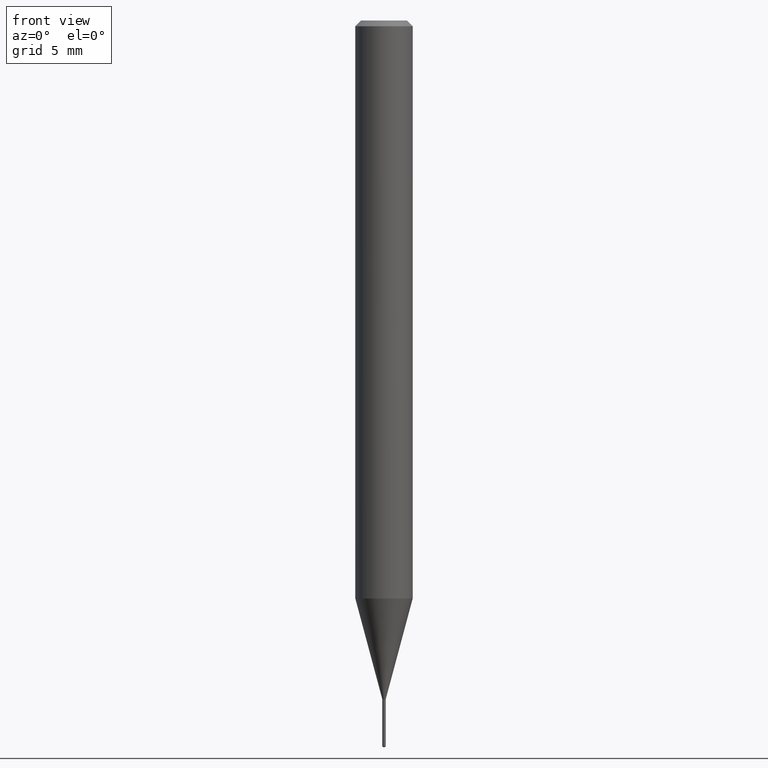
[diagram: clean part render]
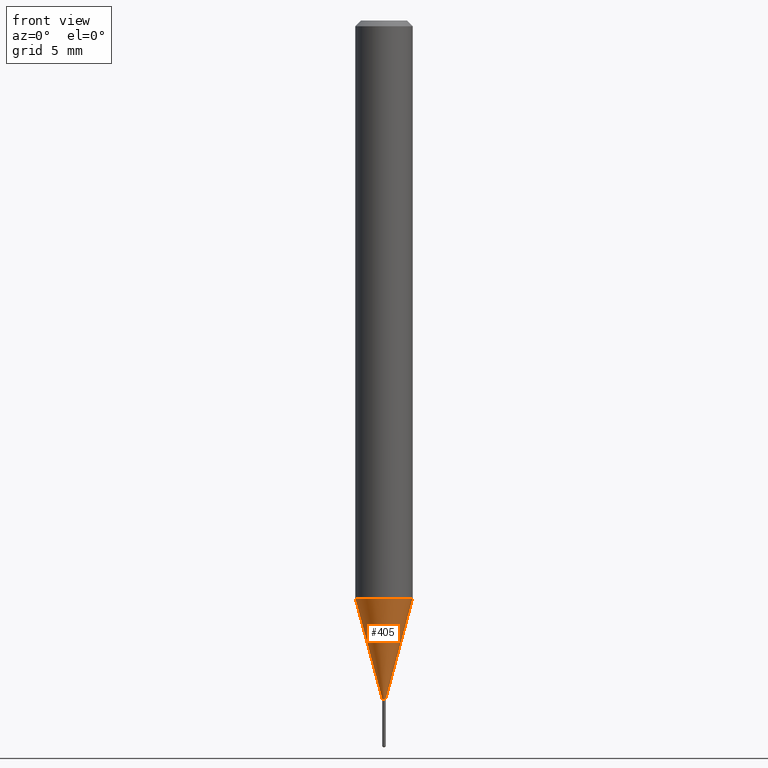
[diagram: same view with one face highlighted and labeled with its STEP entity id]
A machine part, front view. The second image highlights one B-rep face of the part: STEP entity #405.
In plain terms, the highlighted conical surface has half-angle 15 deg.
Its self-contained STEP definition (entity closure, byte-faithful):
#46 = CIRCLE ( 'NONE', #272, 0.003549999999999997602 ) ;
#55 = CARTESIAN_POINT ( 'NONE',  ( 0.003549999999999997602, -4.900992355334122390E-15, -1.396599999999999842 ) ) ;
#77 = DIRECTION ( 'NONE',  ( -0.2588190451025211836, 5.211531920934547886E-15, 0.9659258262890679791 ) ) ;
#98 = DIRECTION ( 'NONE',  ( 1.000000000000000000, -6.982962677686272233E-15, 0.000000000000000000 ) ) ;
#103 = VERTEX_POINT ( 'NONE', #486 ) ;
#104 = CARTESIAN_POINT ( 'NONE',  ( -0.003549999999999997602, -4.850978570708852316E-15, -1.396599999999999842 ) ) ;
#123 = VECTOR ( 'NONE', #322, 39.37007874015748854 ) ;
#130 = CARTESIAN_POINT ( 'NONE',  ( 2.908814666986231247E-29, -4.153016428689947803E-15, -1.189471180179926924 ) ) ;
#136 = LINE ( 'NONE', #432, #123 ) ;
#153 = VERTEX_POINT ( 'NONE', #205 ) ;
#169 = DIRECTION ( 'NONE',  ( -2.445468806185136597E-29, 3.491481338843145583E-15, 1.000000000000000000 ) ) ;
#180 = VERTEX_POINT ( 'NONE', #356 ) ;
#205 = CARTESIAN_POINT ( 'NONE',  ( -0.003549999999999997602, -4.852026015110506796E-15, -1.396599999999999842 ) ) ;
#206 = DIRECTION ( 'NONE',  ( 1.000000000000000000, -6.982962677686296687E-15, 0.000000000000000000 ) ) ;
#218 = CARTESIAN_POINT ( 'NONE',  ( 3.415341734718161419E-29, -4.876202837828336250E-15, -1.396599999999999842 ) ) ;
#235 = AXIS2_PLACEMENT_3D ( 'NONE', #130, #169, #98 ) ;
#241 = CONICAL_SURFACE ( 'NONE', #303, 0.003549999999999997602, 0.2617993877991499074 ) ;
#251 = ORIENTED_EDGE ( 'NONE', *, *, #332, .F. ) ;
#272 = AXIS2_PLACEMENT_3D ( 'NONE', #400, #357, #206 ) ;
#298 = EDGE_CURVE ( 'NONE', #153, #417, #46, .T. ) ;
#303 = AXIS2_PLACEMENT_3D ( 'NONE', #218, #316, #429 ) ;
#304 = ORIENTED_EDGE ( 'NONE', *, *, #312, .T. ) ;
#310 = VECTOR ( 'NONE', #77, 39.37007874015748854 ) ;
#312 = EDGE_CURVE ( 'NONE', #417, #103, #136, .T. ) ;
#316 = DIRECTION ( 'NONE',  ( -2.445468806185136597E-29, 3.491481338843145583E-15, 1.000000000000000000 ) ) ;
#322 = DIRECTION ( 'NONE',  ( 0.2588190451025211836, 1.565188264969622559E-15, 0.9659258262890679791 ) ) ;
#332 = EDGE_CURVE ( 'NONE', #180, #103, #423, .T. ) ;
#338 = LINE ( 'NONE', #104, #310 ) ;
#356 = CARTESIAN_POINT ( 'NONE',  ( -0.05905000000000014404, -3.733440943223607521E-15, -1.189471180179926924 ) ) ;
#357 = DIRECTION ( 'NONE',  ( -2.445468806185136597E-29, 3.491481338843145583E-15, 1.000000000000000000 ) ) ;
#366 = EDGE_LOOP ( 'NONE', ( #443, #480, #304, #251 ) ) ;
#397 = FACE_OUTER_BOUND ( 'NONE', #366, .T. ) ;
#400 = CARTESIAN_POINT ( 'NONE',  ( 3.415341734718161419E-29, -4.876202837828336250E-15, -1.396599999999999842 ) ) ;
#405 = ADVANCED_FACE ( 'NONE', ( #397 ), #241, .T. ) ;
#417 = VERTEX_POINT ( 'NONE', #55 ) ;
#423 = CIRCLE ( 'NONE', #235, 0.05905000000000014404 ) ;
#429 = DIRECTION ( 'NONE',  ( 1.000000000000000000, -6.982962677686296687E-15, 0.000000000000000000 ) ) ;
#432 = CARTESIAN_POINT ( 'NONE',  ( 0.003549999999999997602, -4.900992355334122390E-15, -1.396599999999999842 ) ) ;
#443 = ORIENTED_EDGE ( 'NONE', *, *, #454, .F. ) ;
#454 = EDGE_CURVE ( 'NONE', #153, #180, #338, .T. ) ;
#480 = ORIENTED_EDGE ( 'NONE', *, *, #298, .T. ) ;
#486 = CARTESIAN_POINT ( 'NONE',  ( 0.05905000000000014404, -4.565360374807322723E-15, -1.189471180179926924 ) ) ;